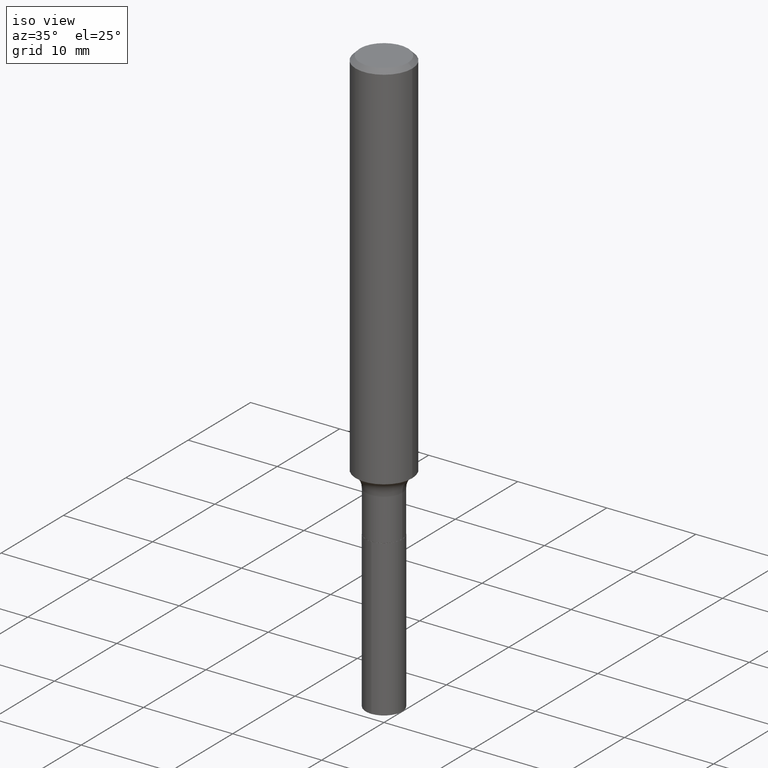
[diagram: clean part render]
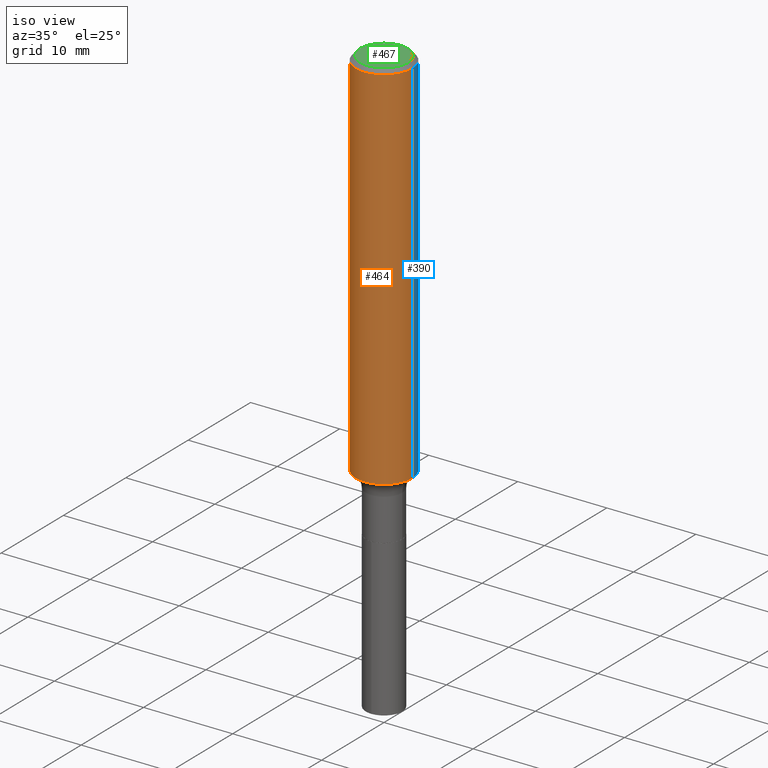
[diagram: same view with three faces highlighted in distinct colors, each labeled with its STEP entity id]
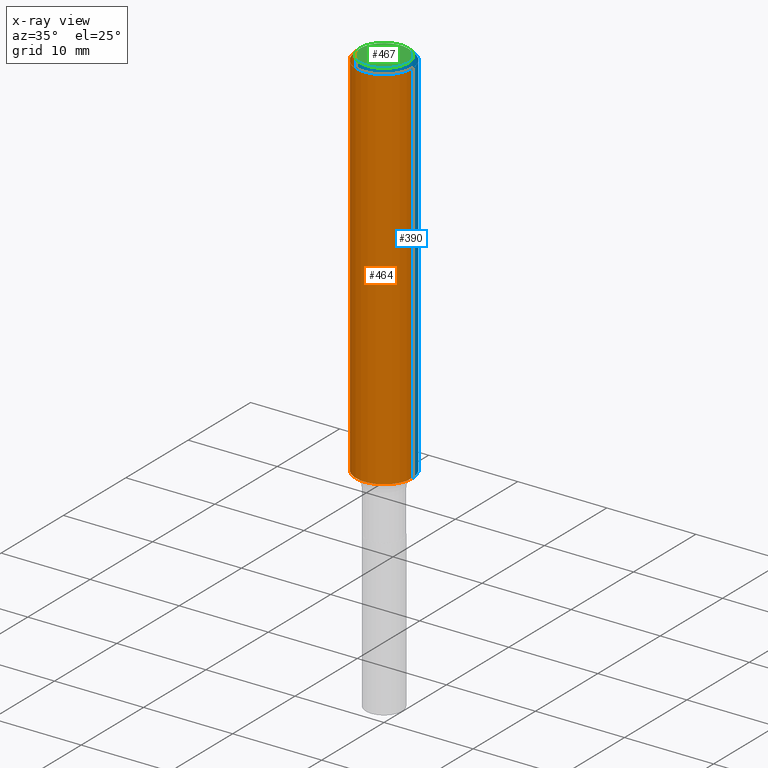
[diagram: x-ray of the same camera — body ghosted, the three highlighted faces saturated]
A machine part, iso view with three faces highlighted in distinct colors.
The next image is the same camera in x-ray (body ghosted, the three faces saturated) — at least one of them is partly hidden behind the body in this view.
Their STEP definitions:

[orange] entity #464 — the highlighted cylindrical surface (edge-blend (fillet) strip) has radius 3.175 mm, axis along (-0, 0, 1).
#10 = AXIS2_PLACEMENT_3D ( 'NONE', #445, #409, #370 ) ;
#19 = FACE_OUTER_BOUND ( 'NONE', #173, .T. ) ;
#22 = DIRECTION ( 'NONE',  ( 1.000000000000000000, -6.982962677686266711E-15, 0.000000000000000000 ) ) ;
#24 = DIRECTION ( 'NONE',  ( -2.445468806185136877E-29, 3.491481338843145188E-15, 1.000000000000000000 ) ) ;
#26 = DIRECTION ( 'NONE',  ( -2.445468806185136597E-29, 3.491481338843145583E-15, 1.000000000000000000 ) ) ;
#36 = CIRCLE ( 'NONE', #255, 0.1250000000000000000 ) ;
#58 = DIRECTION ( 'NONE',  ( -2.445468806185136597E-29, 3.491481338843145583E-15, 1.000000000000000000 ) ) ;
#64 = AXIS2_PLACEMENT_3D ( 'NONE', #278, #58, #317 ) ;
#87 = EDGE_CURVE ( 'NONE', #111, #179, #166, .T. ) ;
#91 = VECTOR ( 'NONE', #274, 39.37007874015748143 ) ;
#99 = CARTESIAN_POINT ( 'NONE',  ( -0.1250000000000002498, -4.891481209924620531E-15, -1.655360309483927761 ) ) ;
#111 = VERTEX_POINT ( 'NONE', #99 ) ;
#124 = CARTESIAN_POINT ( 'NONE',  ( 0.1250000000000001110, -8.728703347107841277E-16, 6.095220969744924646E-30 ) ) ;
#126 = CARTESIAN_POINT ( 'NONE',  ( 4.585254011597163874E-31, -6.546527510330944066E-17, -0.01875000000000013461 ) ) ;
#137 = LINE ( 'NONE', #175, #209 ) ;
#165 = ORIENTED_EDGE ( 'NONE', *, *, #442, .F. ) ;
#166 = CIRCLE ( 'NONE', #10, 0.1250000000000001943 ) ;
#173 = EDGE_LOOP ( 'NONE', ( #165, #466, #404, #355 ) ) ;
#175 = CARTESIAN_POINT ( 'NONE',  ( -0.1250000000000001110, 8.881784197001260212E-16, -6.148668862818637832E-30 ) ) ;
#179 = VERTEX_POINT ( 'NONE', #196 ) ;
#196 = CARTESIAN_POINT ( 'NONE',  ( 0.1250000000000002498, -6.652529964335533835E-15, -1.655360309483927761 ) ) ;
#209 = VECTOR ( 'NONE', #24, 39.37007874015748143 ) ;
#255 = AXIS2_PLACEMENT_3D ( 'NONE', #126, #26, #22 ) ;
#274 = DIRECTION ( 'NONE',  ( -2.445468806185136877E-29, 3.491481338843145188E-15, 1.000000000000000000 ) ) ;
#278 = CARTESIAN_POINT ( 'NONE',  ( 0.000000000000000000, 0.000000000000000000, 0.000000000000000000 ) ) ;
#302 = CARTESIAN_POINT ( 'NONE',  ( 0.1250000000000000000, -9.383356098140928781E-16, -0.01875000000000013461 ) ) ;
#303 = VERTEX_POINT ( 'NONE', #302 ) ;
#315 = CYLINDRICAL_SURFACE ( 'NONE', #64, 0.1250000000000001110 ) ;
#317 = DIRECTION ( 'NONE',  ( 1.000000000000000000, -6.982962677686266711E-15, 4.876176775795935232E-29 ) ) ;
#341 = EDGE_CURVE ( 'NONE', #381, #303, #36, .T. ) ;
#354 = CARTESIAN_POINT ( 'NONE',  ( -0.1250000000000000000, -2.034384032663901827E-15, -0.01875000000000013461 ) ) ;
#355 = ORIENTED_EDGE ( 'NONE', *, *, #341, .F. ) ;
#370 = DIRECTION ( 'NONE',  ( 1.000000000000000000, -6.982962677686267499E-15, 0.000000000000000000 ) ) ;
#381 = VERTEX_POINT ( 'NONE', #354 ) ;
#394 = LINE ( 'NONE', #124, #91 ) ;
#404 = ORIENTED_EDGE ( 'NONE', *, *, #413, .T. ) ;
#409 = DIRECTION ( 'NONE',  ( -2.445468806185136597E-29, 3.491481338843145583E-15, 1.000000000000000000 ) ) ;
#413 = EDGE_CURVE ( 'NONE', #179, #303, #394, .T. ) ;
#442 = EDGE_CURVE ( 'NONE', #111, #381, #137, .T. ) ;
#445 = CARTESIAN_POINT ( 'NONE',  ( 4.048131999839919317E-29, -5.779659629624748130E-15, -1.655360309483927761 ) ) ;
#464 = ADVANCED_FACE ( 'NONE', ( #19 ), #315, .T. ) ;
#466 = ORIENTED_EDGE ( 'NONE', *, *, #87, .T. ) ;

[blue] entity #390 — the highlighted cylindrical surface (edge-blend (fillet) strip) has radius 3.175 mm, axis along (-0, 0, 1).
#20 = AXIS2_PLACEMENT_3D ( 'NONE', #78, #153, #463 ) ;
#24 = DIRECTION ( 'NONE',  ( -2.445468806185136877E-29, 3.491481338843145188E-15, 1.000000000000000000 ) ) ;
#55 = DIRECTION ( 'NONE',  ( -2.445468806185136597E-29, 3.491481338843145583E-15, 1.000000000000000000 ) ) ;
#73 = DIRECTION ( 'NONE',  ( 1.000000000000000000, -6.982962677686267499E-15, 0.000000000000000000 ) ) ;
#78 = CARTESIAN_POINT ( 'NONE',  ( 4.585254011597163874E-31, -6.546527510330944066E-17, -0.01875000000000013461 ) ) ;
#88 = DIRECTION ( 'NONE',  ( 1.000000000000000000, -6.982962677686266711E-15, 4.876176775795935232E-29 ) ) ;
#91 = VECTOR ( 'NONE', #274, 39.37007874015748143 ) ;
#99 = CARTESIAN_POINT ( 'NONE',  ( -0.1250000000000002498, -4.891481209924620531E-15, -1.655360309483927761 ) ) ;
#105 = EDGE_CURVE ( 'NONE', #179, #111, #158, .T. ) ;
#111 = VERTEX_POINT ( 'NONE', #99 ) ;
#120 = ORIENTED_EDGE ( 'NONE', *, *, #187, .F. ) ;
#124 = CARTESIAN_POINT ( 'NONE',  ( 0.1250000000000001110, -8.728703347107841277E-16, 6.095220969744924646E-30 ) ) ;
#137 = LINE ( 'NONE', #175, #209 ) ;
#142 = DIRECTION ( 'NONE',  ( -2.445468806185136597E-29, 3.491481338843145583E-15, 1.000000000000000000 ) ) ;
#146 = CARTESIAN_POINT ( 'NONE',  ( 4.048131999839919317E-29, -5.779659629624748130E-15, -1.655360309483927761 ) ) ;
#151 = CIRCLE ( 'NONE', #20, 0.1250000000000000000 ) ;
#153 = DIRECTION ( 'NONE',  ( -2.445468806185136597E-29, 3.491481338843145583E-15, 1.000000000000000000 ) ) ;
#158 = CIRCLE ( 'NONE', #396, 0.1250000000000001943 ) ;
#169 = ORIENTED_EDGE ( 'NONE', *, *, #442, .T. ) ;
#175 = CARTESIAN_POINT ( 'NONE',  ( -0.1250000000000001110, 8.881784197001260212E-16, -6.148668862818637832E-30 ) ) ;
#179 = VERTEX_POINT ( 'NONE', #196 ) ;
#187 = EDGE_CURVE ( 'NONE', #303, #381, #151, .T. ) ;
#196 = CARTESIAN_POINT ( 'NONE',  ( 0.1250000000000002498, -6.652529964335533835E-15, -1.655360309483927761 ) ) ;
#209 = VECTOR ( 'NONE', #24, 39.37007874015748143 ) ;
#213 = ORIENTED_EDGE ( 'NONE', *, *, #413, .F. ) ;
#214 = CYLINDRICAL_SURFACE ( 'NONE', #456, 0.1250000000000001110 ) ;
#274 = DIRECTION ( 'NONE',  ( -2.445468806185136877E-29, 3.491481338843145188E-15, 1.000000000000000000 ) ) ;
#302 = CARTESIAN_POINT ( 'NONE',  ( 0.1250000000000000000, -9.383356098140928781E-16, -0.01875000000000013461 ) ) ;
#303 = VERTEX_POINT ( 'NONE', #302 ) ;
#310 = FACE_OUTER_BOUND ( 'NONE', #470, .T. ) ;
#354 = CARTESIAN_POINT ( 'NONE',  ( -0.1250000000000000000, -2.034384032663901827E-15, -0.01875000000000013461 ) ) ;
#381 = VERTEX_POINT ( 'NONE', #354 ) ;
#390 = ADVANCED_FACE ( 'NONE', ( #310 ), #214, .T. ) ;
#394 = LINE ( 'NONE', #124, #91 ) ;
#396 = AXIS2_PLACEMENT_3D ( 'NONE', #146, #142, #73 ) ;
#413 = EDGE_CURVE ( 'NONE', #179, #303, #394, .T. ) ;
#425 = CARTESIAN_POINT ( 'NONE',  ( 0.000000000000000000, 0.000000000000000000, 0.000000000000000000 ) ) ;
#442 = EDGE_CURVE ( 'NONE', #111, #381, #137, .T. ) ;
#456 = AXIS2_PLACEMENT_3D ( 'NONE', #425, #55, #88 ) ;
#462 = ORIENTED_EDGE ( 'NONE', *, *, #105, .T. ) ;
#463 = DIRECTION ( 'NONE',  ( 1.000000000000000000, -6.982962677686266711E-15, 0.000000000000000000 ) ) ;
#470 = EDGE_LOOP ( 'NONE', ( #462, #169, #120, #213 ) ) ;

[green] entity #467 — the highlighted planar face has unit normal (0, -0, -1).
#48 = CIRCLE ( 'NONE', #184, 0.1062499999999999972 ) ;
#50 = ORIENTED_EDGE ( 'NONE', *, *, #92, .T. ) ;
#75 = DIRECTION ( 'NONE',  ( -2.445468806185136597E-29, 3.491481338843145583E-15, 1.000000000000000000 ) ) ;
#84 = CARTESIAN_POINT ( 'NONE',  ( -0.1062499999999999972, 7.746724220558198188E-16, 6.505936120465012444E-18 ) ) ;
#92 = EDGE_CURVE ( 'NONE', #431, #134, #48, .T. ) ;
#93 = DIRECTION ( 'NONE',  ( -1.000000000000000000, 6.982962677686265922E-15, -4.876176775795935793E-29 ) ) ;
#121 = DIRECTION ( 'NONE',  ( 1.000000000000000000, -6.982962677686266711E-15, 4.875930095424100059E-29 ) ) ;
#132 = PLANE ( 'NONE',  #185 ) ;
#134 = VERTEX_POINT ( 'NONE', #292 ) ;
#156 = DIRECTION ( 'NONE',  ( -2.445468806185136597E-29, 3.491481338843145583E-15, 1.000000000000000000 ) ) ;
#184 = AXIS2_PLACEMENT_3D ( 'NONE', #416, #75, #491 ) ;
#185 = AXIS2_PLACEMENT_3D ( 'NONE', #282, #436, #93 ) ;
#242 = ORIENTED_EDGE ( 'NONE', *, *, #299, .T. ) ;
#282 = CARTESIAN_POINT ( 'NONE',  ( -7.955031918821649840E-47, 1.135767727816383790E-32, 3.252968060235157457E-18 ) ) ;
#292 = CARTESIAN_POINT ( 'NONE',  ( 0.1062499999999999972, -8.259777185439879685E-16, 6.505936120475796882E-18 ) ) ;
#299 = EDGE_CURVE ( 'NONE', #134, #431, #486, .T. ) ;
#319 = EDGE_LOOP ( 'NONE', ( #50, #242 ) ) ;
#337 = CARTESIAN_POINT ( 'NONE',  ( -1.591006383764329968E-46, 2.271535455632767580E-32, 6.505936120470314915E-18 ) ) ;
#388 = AXIS2_PLACEMENT_3D ( 'NONE', #337, #156, #121 ) ;
#416 = CARTESIAN_POINT ( 'NONE',  ( -1.591006383764329968E-46, 2.271535455632767580E-32, 6.505936120470314915E-18 ) ) ;
#431 = VERTEX_POINT ( 'NONE', #84 ) ;
#436 = DIRECTION ( 'NONE',  ( 2.438088387897960049E-29, -3.491481338843145188E-15, -1.000000000000000000 ) ) ;
#467 = ADVANCED_FACE ( 'NONE', ( #476 ), #132, .F. ) ;
#476 = FACE_OUTER_BOUND ( 'NONE', #319, .T. ) ;
#486 = CIRCLE ( 'NONE', #388, 0.1062499999999999972 ) ;
#491 = DIRECTION ( 'NONE',  ( 1.000000000000000000, -6.982962677686266711E-15, 4.875930095424100059E-29 ) ) ;